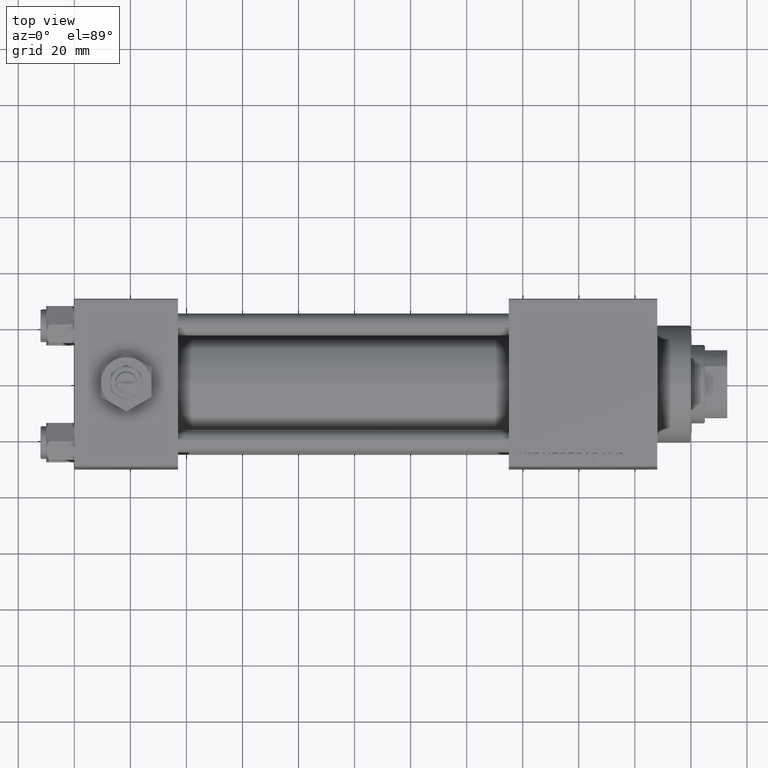
[diagram: clean part render]
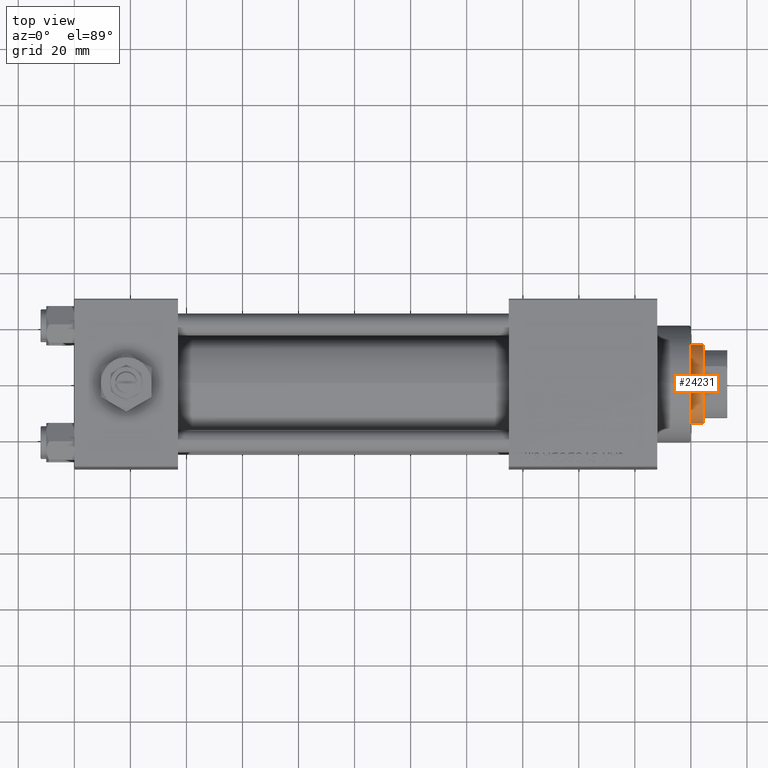
[diagram: same view with one face highlighted and labeled with its STEP entity id]
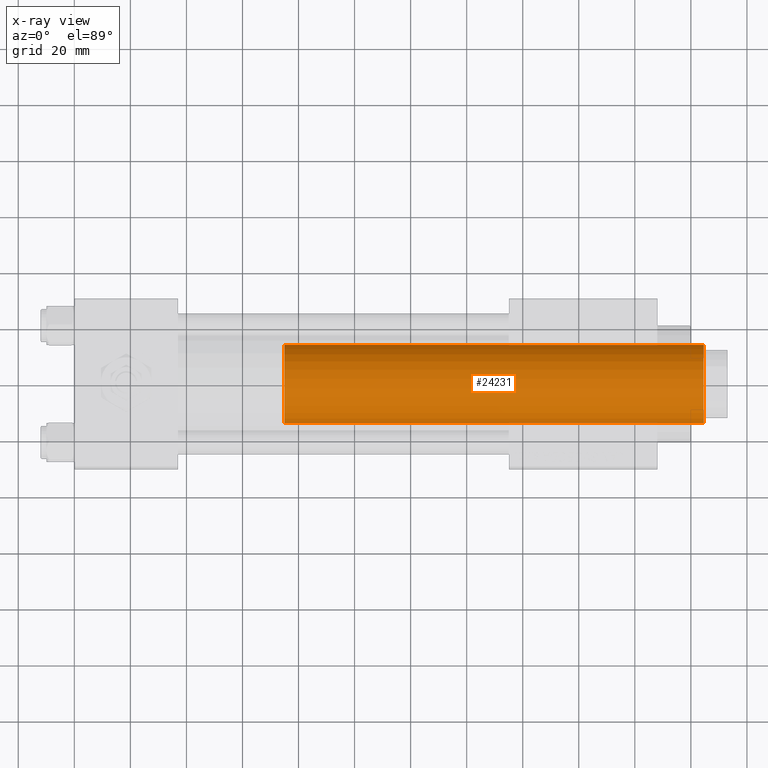
[diagram: x-ray of the same camera — body ghosted, the highlighted face saturated]
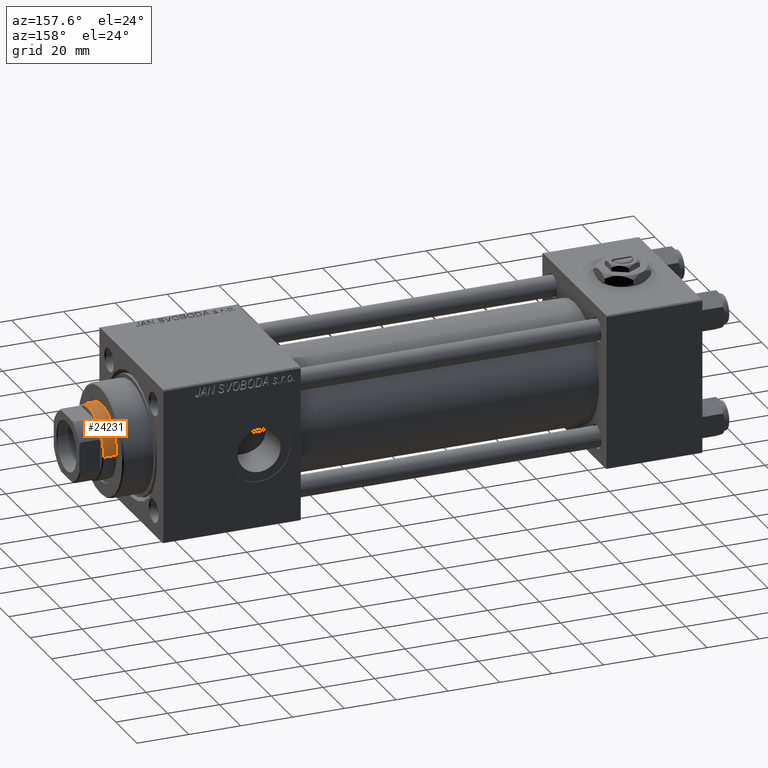
[diagram: same view with one face highlighted and labeled with its STEP entity id]
A machine part, top view. The second image highlights one B-rep face of the part: STEP entity #24231.
The next image is the same camera in x-ray: the body ghosted, the highlighted face saturated — about 0% of this face is hidden behind the body in this view.
A second angle (auxiliary view) of the same face is appended — the face is thin or edge-on in the first view.
In plain terms, the highlighted cylindrical surface (partial cylindrical patch) has radius 14 mm, axis along (-1, 0, 0).
Its self-contained STEP definition (entity closure, byte-faithful):
#1179 = CIRCLE ( 'NONE', #49881, 14.00000000000000178 ) ;
#1365 = DIRECTION ( 'NONE',  ( 1.000000000000000000, 0.000000000000000000, 0.000000000000000000 ) ) ;
#2440 = EDGE_LOOP ( 'NONE', ( #43738, #42116, #17484, #24182 ) ) ;
#3614 = VERTEX_POINT ( 'NONE', #5298 ) ;
#5297 = DIRECTION ( 'NONE',  ( 0.000000000000000000, 0.000000000000000000, -1.000000000000000000 ) ) ;
#5298 = CARTESIAN_POINT ( 'NONE',  ( 14.00000000000000178, 1.714505518806294835E-15, 38.00000000000000000 ) ) ;
#6225 = EDGE_CURVE ( 'NONE', #28410, #12999, #44614, .T. ) ;
#6859 = DIRECTION ( 'NONE',  ( -0.000000000000000000, -0.000000000000000000, -1.000000000000000000 ) ) ;
#8003 = LINE ( 'NONE', #47695, #38887 ) ;
#12999 = VERTEX_POINT ( 'NONE', #30597 ) ;
#16233 = CARTESIAN_POINT ( 'NONE',  ( 0.000000000000000000, 0.000000000000000000, 38.00000000000000000 ) ) ;
#17484 = ORIENTED_EDGE ( 'NONE', *, *, #19874, .T. ) ;
#19874 = EDGE_CURVE ( 'NONE', #12999, #46505, #8003, .T. ) ;
#19979 = CARTESIAN_POINT ( 'NONE',  ( 0.000000000000000000, 0.000000000000000000, 188.0000000000000000 ) ) ;
#21613 = EDGE_CURVE ( 'NONE', #46505, #3614, #1179, .T. ) ;
#24182 = ORIENTED_EDGE ( 'NONE', *, *, #21613, .T. ) ;
#24231 = ADVANCED_FACE ( 'NONE', ( #35766 ), #30606, .T. ) ;
#24455 = AXIS2_PLACEMENT_3D ( 'NONE', #28697, #5297, #1365 ) ;
#26082 = VECTOR ( 'NONE', #6859, 1000.000000000000000 ) ;
#26580 = LINE ( 'NONE', #49994, #26082 ) ;
#28410 = VERTEX_POINT ( 'NONE', #39033 ) ;
#28697 = CARTESIAN_POINT ( 'NONE',  ( 0.000000000000000000, 0.000000000000000000, 187.5000000000000284 ) ) ;
#30597 = CARTESIAN_POINT ( 'NONE',  ( -14.00000000000000178, 0.000000000000000000, 187.5000000000000284 ) ) ;
#30606 = CYLINDRICAL_SURFACE ( 'NONE', #32297, 14.00000000000000178 ) ;
#32297 = AXIS2_PLACEMENT_3D ( 'NONE', #19979, #51797, #46641 ) ;
#35619 = DIRECTION ( 'NONE',  ( -0.000000000000000000, -0.000000000000000000, -1.000000000000000000 ) ) ;
#35766 = FACE_OUTER_BOUND ( 'NONE', #2440, .T. ) ;
#36983 = DIRECTION ( 'NONE',  ( 0.000000000000000000, 0.000000000000000000, 1.000000000000000000 ) ) ;
#38887 = VECTOR ( 'NONE', #35619, 1000.000000000000000 ) ;
#39033 = CARTESIAN_POINT ( 'NONE',  ( 14.00000000000000178, 1.714505518806294835E-15, 187.5000000000000284 ) ) ;
#41225 = CARTESIAN_POINT ( 'NONE',  ( -14.00000000000000178, 0.000000000000000000, 38.00000000000000000 ) ) ;
#42116 = ORIENTED_EDGE ( 'NONE', *, *, #6225, .T. ) ;
#43738 = ORIENTED_EDGE ( 'NONE', *, *, #52007, .F. ) ;
#44614 = CIRCLE ( 'NONE', #24455, 14.00000000000000178 ) ;
#46505 = VERTEX_POINT ( 'NONE', #41225 ) ;
#46641 = DIRECTION ( 'NONE',  ( -1.000000000000000000, 0.000000000000000000, 0.000000000000000000 ) ) ;
#47695 = CARTESIAN_POINT ( 'NONE',  ( -14.00000000000000178, 0.000000000000000000, 188.0000000000000000 ) ) ;
#49881 = AXIS2_PLACEMENT_3D ( 'NONE', #16233, #36983, #51985 ) ;
#49994 = CARTESIAN_POINT ( 'NONE',  ( 14.00000000000000178, 1.714505518806294835E-15, 188.0000000000000000 ) ) ;
#51797 = DIRECTION ( 'NONE',  ( -0.000000000000000000, -0.000000000000000000, -1.000000000000000000 ) ) ;
#51985 = DIRECTION ( 'NONE',  ( 1.000000000000000000, 0.000000000000000000, 0.000000000000000000 ) ) ;
#52007 = EDGE_CURVE ( 'NONE', #28410, #3614, #26580, .T. ) ;